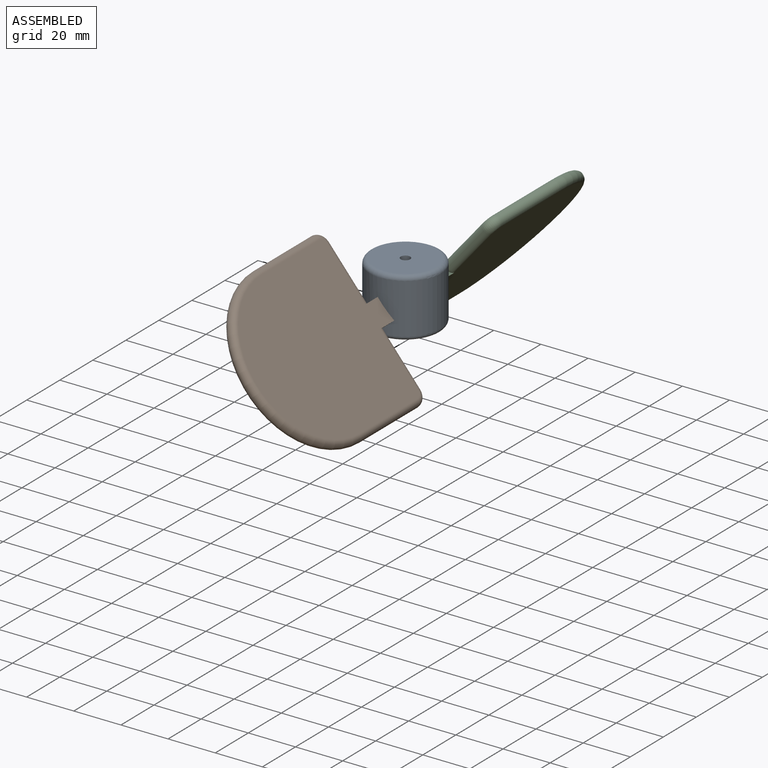
[diagram: assembled view]
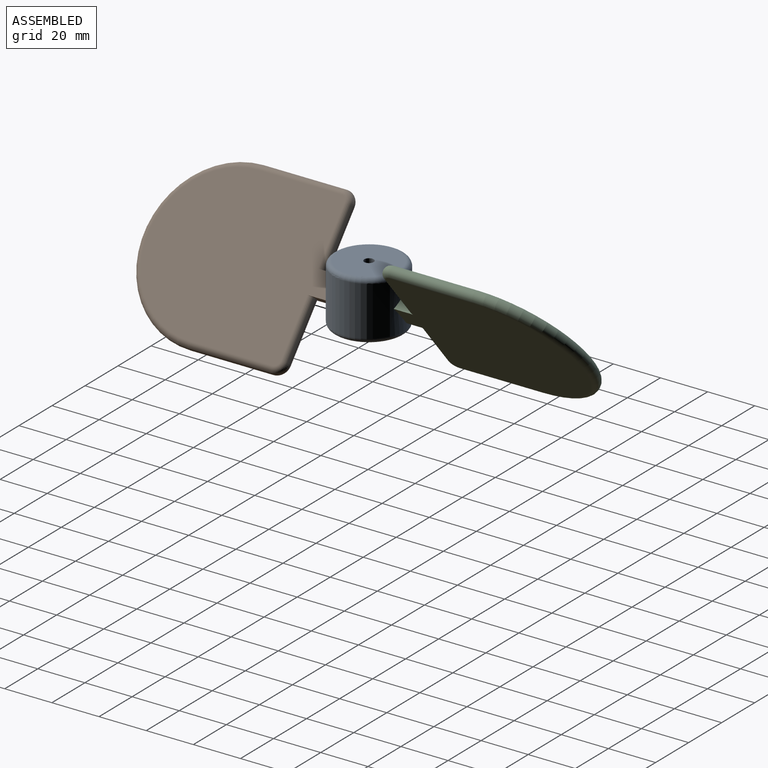
[diagram: assembled view, second angle]
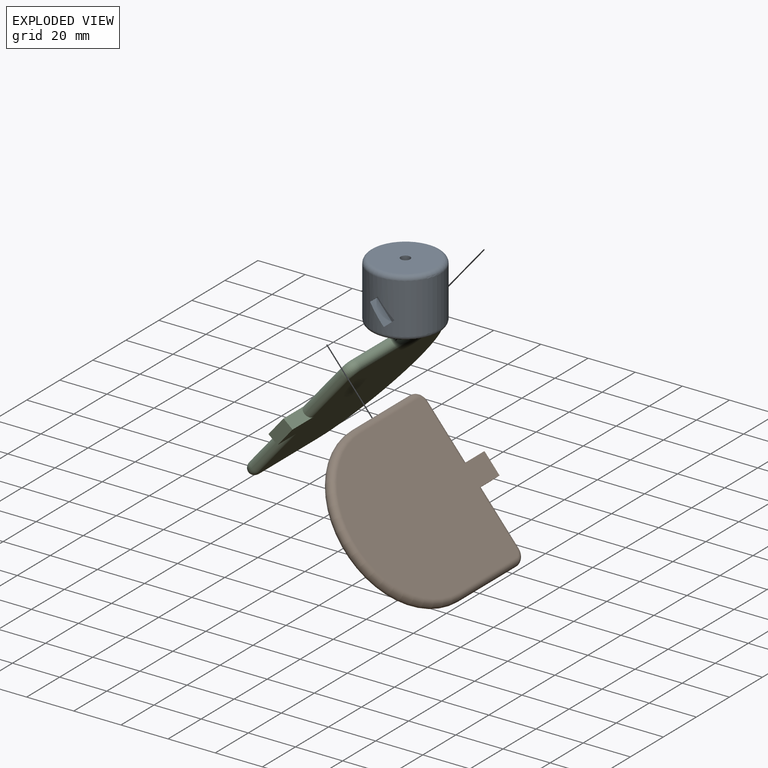
[diagram: exploded view]
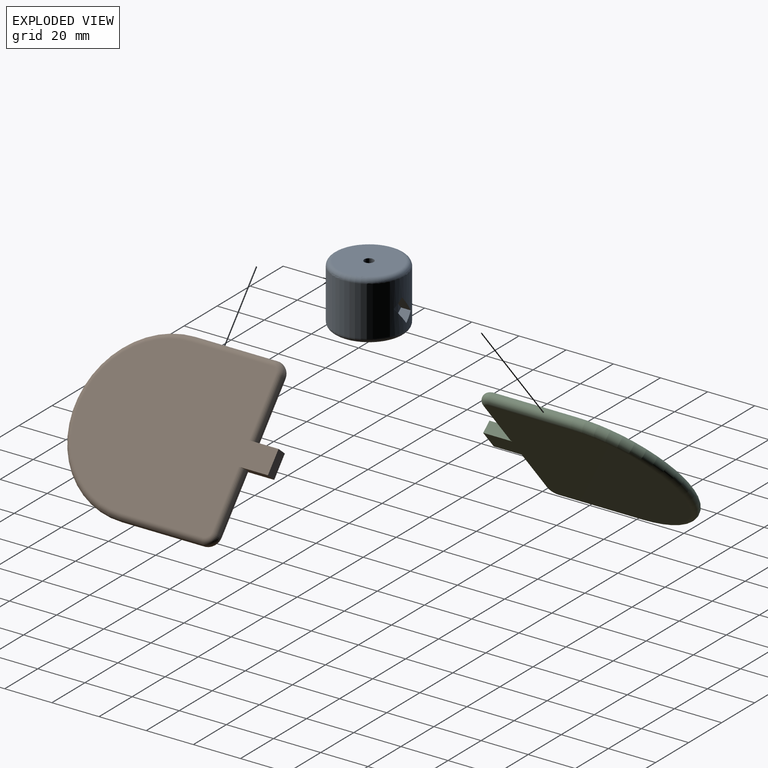
[diagram: exploded view, second angle]
ASSEMBLY  parts=3 mates=2
PART A: 17 faces, bbox 32.5x32.5x25 mm
  f0: plane 26x26mm, normal (0,0,1), area 518.4mm2, adj f13,f15
  f1: plane 26x26mm, normal (0,0,-1), area 530.9mm2, adj f14
  f2: plane 7.66x6.43mm, normal (0.77,0,0.64), area 47.6mm2, adj f3,f5,f6,f12
  f3: plane 4.94x3.83mm, normal (-0.64,0,0.77), area 23mm2, adj f2,f4,f6,f12
  f4: plane 7.66x6.43mm, normal (-0.77,0,-0.64), area 47.6mm2, adj f3,f5,f6,f12
  f5: plane 4.94x3.83mm, normal (0.64,0,-0.77), area 23mm2, adj f2,f4,f6,f12
  f6: plane 10.87x10.26mm, normal (0,-1,0), area 50mm2, adj f2,f3,f4,f5
  f7: plane 7.66x6.43mm, normal (-0.77,0,0.64), area 47.6mm2, adj f8,f10,f11,f12
  f8: plane 4.94x3.83mm, normal (0.64,0,0.77), area 23mm2, adj f7,f9,f11,f12
  f9: plane 7.66x6.43mm, normal (0.77,0,-0.64), area 47.6mm2, adj f8,f10,f11,f12
  f10: plane 4.94x3.83mm, normal (-0.64,0,-0.77), area 23mm2, adj f7,f9,f11,f12
  f11: plane 10.87x10.26mm, normal (0,1,0), area 50mm2, adj f7,f8,f9,f10
  f12: cylinder r=15mm len=30mm, axis (0,0,1), area 1878.1mm2, adj f2,f3,f4,f5,f7,f8,f9,f10
  f13: torus R=13mm, axis (0,0,1), area 281.7mm2, adj f0,f12
  f14: torus R=13mm, axis (0,0,1), area 281.7mm2, adj f1,f12
  f15: cylinder r=2mm len=10mm, axis (0,0,1), area 125.7mm2, adj f0,f16
  f16: plane 4x4mm, normal (0,0,1), area 12.6mm2, adj f15
PART B: 12 faces, bbox 75.8x87.9x5 mm
  f0: plane 12.5x5mm, normal (1,0,0), area 52.7mm2, adj f1,f3,f4,f5
  f1: plane 10x5mm, normal (0,1,0), area 50mm2, adj f0,f2,f3,f4
  f2: plane 12.5x5mm, normal (-1,0,0), area 52.7mm2, adj f1,f3,f4,f11
  f3: plane 82.5x65mm, normal (0,0,1), area 4219mm2, adj f0,f1,f2,f5,f6,f7,f8,f9
  f4: plane 82.5x65mm, normal (0,0,-1), area 4219mm2, adj f0,f1,f2,f5,f6,f7,f8,f9
  f5: cylinder r=2.5mm len=25mm, axis (-1,0,0), area 196.3mm2, adj f0,f3,f4,f6
  f6: torus R=2.5mm, axis (0,0,1), area 50.5mm2, adj f3,f4,f5,f7
  f7: cylinder r=2.5mm len=35mm, axis (0,1,0), area 274.9mm2, adj f3,f4,f6,f8
  f8: torus R=32.5mm, axis (0,0,1), area 841.2mm2, adj f3,f4,f7,f9
  f9: cylinder r=2.5mm len=35mm, axis (0,-1,0), area 274.9mm2, adj f3,f4,f8,f10
  f10: torus R=2.5mm, axis (0,0,1), area 50.5mm2, adj f3,f4,f9,f11
  f11: cylinder r=2.5mm len=25mm, axis (-1,0,0), area 196.3mm2, adj f2,f3,f4,f10
PART C: same geometry as B
PLACE A t=(24.64,5.7,-25.28)mm fixed
PLACE B rot(axis=(0,1,0),50deg) t=(22.72,-46.8,-16.89)mm
PLACE C rot(axis=(0.42,0,-0.91),180deg) t=(26.55,58.2,-16.89)mm
MATE fastened C.f2 <-> A.f10  axis (0.64,0,0.77) through (27.85,15.7,-11.45)mm
MATE fastened B.f2 <-> A.f5  axis (-0.64,0,0.77) through (21.42,-4.3,-11.45)mm
